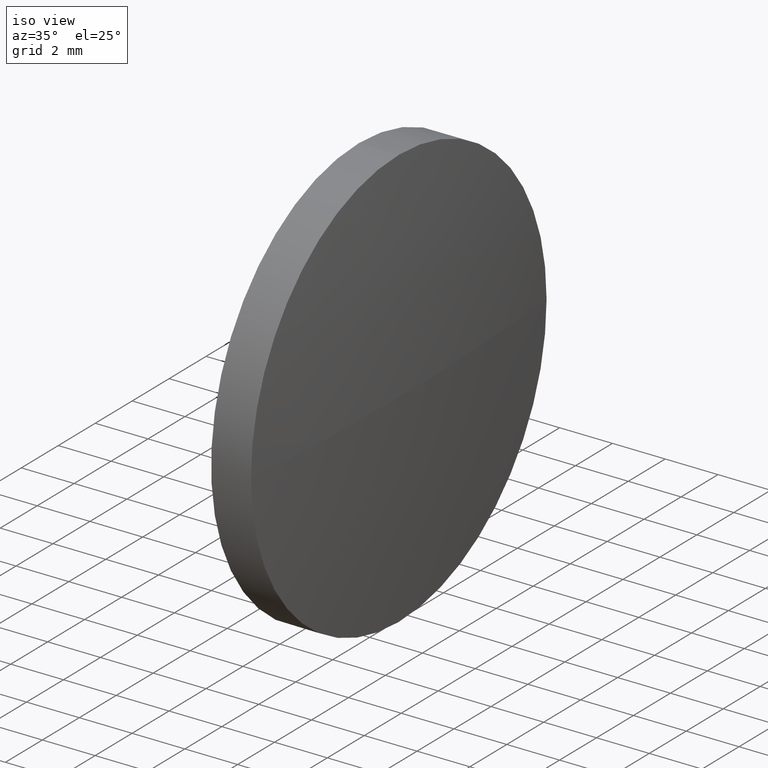
[diagram: clean part render]
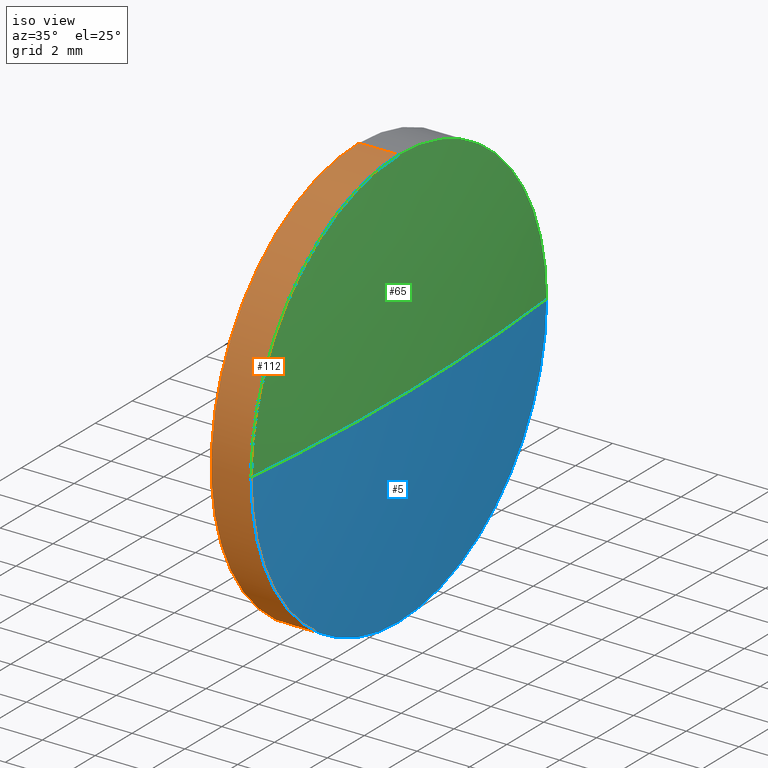
[diagram: same view with three faces highlighted in distinct colors, each labeled with its STEP entity id]
A machine part, iso view with three faces highlighted in distinct colors.
Their STEP definitions:

[orange] entity #112 — the highlighted cylindrical surface (partial cylindrical patch) has radius 8 mm, axis along (-1, -0, -0).
#1 = EDGE_CURVE ( 'NONE', #40, #123, #94, .T. ) ;
#2 = CYLINDRICAL_SURFACE ( 'NONE', #115, 7.999999999999952000 ) ;
#3 = CARTESIAN_POINT ( 'NONE',  ( 680.5108542720965900, 360.8508104614297200, 7.999999999999952000 ) ) ;
#4 = CARTESIAN_POINT ( 'NONE',  ( 679.0008542720967200, 360.8508104614297200, -7.999999999999952000 ) ) ;
#7 = EDGE_CURVE ( 'NONE', #138, #136, #69, .T. ) ;
#9 = CARTESIAN_POINT ( 'NONE',  ( 680.5108542720965900, 360.8508104614297200, -7.999999999999952000 ) ) ;
#11 = CARTESIAN_POINT ( 'NONE',  ( 679.0008542720967200, 360.8508104614297200, 7.999999999999952000 ) ) ;
#14 = CIRCLE ( 'NONE', #33, 7.999999999999952000 ) ;
#19 = AXIS2_PLACEMENT_3D ( 'NONE', #87, #141, #70 ) ;
#22 = DIRECTION ( 'NONE',  ( 0.0000000000000000000, 0.0000000000000000000, 1.000000000000000000 ) ) ;
#26 = ORIENTED_EDGE ( 'NONE', *, *, #134, .T. ) ;
#33 = AXIS2_PLACEMENT_3D ( 'NONE', #186, #107, #185 ) ;
#36 = FACE_OUTER_BOUND ( 'NONE', #85, .T. ) ;
#40 = VERTEX_POINT ( 'NONE', #9 ) ;
#45 = ORIENTED_EDGE ( 'NONE', *, *, #118, .T. ) ;
#51 = AXIS2_PLACEMENT_3D ( 'NONE', #76, #79, #156 ) ;
#53 = EDGE_CURVE ( 'NONE', #123, #136, #72, .T. ) ;
#61 = VERTEX_POINT ( 'NONE', #160 ) ;
#69 = LINE ( 'NONE', #127, #132 ) ;
#70 = DIRECTION ( 'NONE',  ( 0.0000000000000000000, 0.0000000000000000000, 1.000000000000000000 ) ) ;
#72 = CIRCLE ( 'NONE', #19, 7.999999999999952000 ) ;
#73 = CARTESIAN_POINT ( 'NONE',  ( 675.2755856517344500, 360.8508104614297200, -7.999999999999952000 ) ) ;
#76 = CARTESIAN_POINT ( 'NONE',  ( 680.5108542720965900, 360.8508104614297200, 0.0000000000000000000 ) ) ;
#77 = ORIENTED_EDGE ( 'NONE', *, *, #53, .F. ) ;
#79 = DIRECTION ( 'NONE',  ( -1.000000000000000000, -0.0000000000000000000, -0.0000000000000000000 ) ) ;
#85 = EDGE_LOOP ( 'NONE', ( #120, #26, #45, #116, #77 ) ) ;
#87 = CARTESIAN_POINT ( 'NONE',  ( 679.0008542720967200, 360.8508104614297200, 0.0000000000000000000 ) ) ;
#88 = DIRECTION ( 'NONE',  ( -1.000000000000000000, -0.0000000000000000000, -0.0000000000000000000 ) ) ;
#94 = LINE ( 'NONE', #73, #101 ) ;
#101 = VECTOR ( 'NONE', #88, 1000.000000000000000 ) ;
#107 = DIRECTION ( 'NONE',  ( -1.000000000000000000, -0.0000000000000000000, -0.0000000000000000000 ) ) ;
#112 = ADVANCED_FACE ( 'NONE', ( #36 ), #2, .T. ) ;
#115 = AXIS2_PLACEMENT_3D ( 'NONE', #150, #125, #22 ) ;
#116 = ORIENTED_EDGE ( 'NONE', *, *, #7, .T. ) ;
#118 = EDGE_CURVE ( 'NONE', #61, #138, #14, .T. ) ;
#120 = ORIENTED_EDGE ( 'NONE', *, *, #1, .F. ) ;
#123 = VERTEX_POINT ( 'NONE', #4 ) ;
#125 = DIRECTION ( 'NONE',  ( -1.000000000000000000, -0.0000000000000000000, -0.0000000000000000000 ) ) ;
#127 = CARTESIAN_POINT ( 'NONE',  ( 675.2755856517344500, 360.8508104614297200, 7.999999999999952000 ) ) ;
#132 = VECTOR ( 'NONE', #166, 1000.000000000000000 ) ;
#134 = EDGE_CURVE ( 'NONE', #40, #61, #147, .T. ) ;
#136 = VERTEX_POINT ( 'NONE', #11 ) ;
#138 = VERTEX_POINT ( 'NONE', #3 ) ;
#141 = DIRECTION ( 'NONE',  ( -1.000000000000000000, -0.0000000000000000000, -0.0000000000000000000 ) ) ;
#147 = CIRCLE ( 'NONE', #51, 7.999999999999952000 ) ;
#150 = CARTESIAN_POINT ( 'NONE',  ( 675.2755856517344500, 360.8508104614297200, 0.0000000000000000000 ) ) ;
#156 = DIRECTION ( 'NONE',  ( 0.0000000000000000000, 0.0000000000000000000, 1.000000000000000000 ) ) ;
#160 = CARTESIAN_POINT ( 'NONE',  ( 680.5108542720965900, 352.8508104614300600, 0.0000000000000000000 ) ) ;
#166 = DIRECTION ( 'NONE',  ( -1.000000000000000000, -0.0000000000000000000, -0.0000000000000000000 ) ) ;
#185 = DIRECTION ( 'NONE',  ( 0.0000000000000000000, 0.0000000000000000000, 1.000000000000000000 ) ) ;
#186 = CARTESIAN_POINT ( 'NONE',  ( 680.5108542720965900, 360.8508104614297200, 0.0000000000000000000 ) ) ;

[blue] entity #5 — the highlighted spherical surface has radius 82.2463 mm.
#5 = ADVANCED_FACE ( 'NONE', ( #172 ), #47, .T. ) ;
#9 = CARTESIAN_POINT ( 'NONE',  ( 680.5108542720965900, 360.8508104614297200, -7.999999999999952000 ) ) ;
#18 = ORIENTED_EDGE ( 'NONE', *, *, #158, .T. ) ;
#23 = CARTESIAN_POINT ( 'NONE',  ( 598.6545722208140900, 360.8508104614301700, 0.0000000000000000000 ) ) ;
#27 = DIRECTION ( 'NONE',  ( 0.0000000000000000000, -1.224646799147353200E-016, 1.000000000000000000 ) ) ;
#28 = DIRECTION ( 'NONE',  ( 0.0000000000000000000, 0.0000000000000000000, -1.000000000000000000 ) ) ;
#34 = AXIS2_PLACEMENT_3D ( 'NONE', #114, #28, #176 ) ;
#39 = AXIS2_PLACEMENT_3D ( 'NONE', #106, #64, #171 ) ;
#40 = VERTEX_POINT ( 'NONE', #9 ) ;
#47 = SPHERICAL_SURFACE ( 'NONE', #78, 82.24628205128244900 ) ;
#50 = CIRCLE ( 'NONE', #161, 82.24628205128247800 ) ;
#51 = AXIS2_PLACEMENT_3D ( 'NONE', #76, #79, #156 ) ;
#57 = EDGE_LOOP ( 'NONE', ( #163, #18, #81, #148 ) ) ;
#58 = CARTESIAN_POINT ( 'NONE',  ( 598.6545722208140900, 360.8508104614301700, 0.0000000000000000000 ) ) ;
#61 = VERTEX_POINT ( 'NONE', #160 ) ;
#64 = DIRECTION ( 'NONE',  ( -1.000000000000000000, -0.0000000000000000000, -0.0000000000000000000 ) ) ;
#76 = CARTESIAN_POINT ( 'NONE',  ( 680.5108542720965900, 360.8508104614297200, 0.0000000000000000000 ) ) ;
#78 = AXIS2_PLACEMENT_3D ( 'NONE', #23, #83, #162 ) ;
#79 = DIRECTION ( 'NONE',  ( -1.000000000000000000, -0.0000000000000000000, -0.0000000000000000000 ) ) ;
#81 = ORIENTED_EDGE ( 'NONE', *, *, #134, .F. ) ;
#83 = DIRECTION ( 'NONE',  ( 0.0000000000000000000, 0.0000000000000000000, 1.000000000000000000 ) ) ;
#98 = DIRECTION ( 'NONE',  ( 0.0000000000000000000, -1.000000000000000000, -1.224646799147353000E-016 ) ) ;
#106 = CARTESIAN_POINT ( 'NONE',  ( 680.5108542720965900, 360.8508104614297200, 0.0000000000000000000 ) ) ;
#113 = VERTEX_POINT ( 'NONE', #144 ) ;
#114 = CARTESIAN_POINT ( 'NONE',  ( 598.6545722208140900, 360.8508104614301700, 0.0000000000000000000 ) ) ;
#119 = CIRCLE ( 'NONE', #39, 7.999999999999952000 ) ;
#134 = EDGE_CURVE ( 'NONE', #40, #61, #147, .T. ) ;
#139 = EDGE_CURVE ( 'NONE', #154, #40, #119, .T. ) ;
#144 = CARTESIAN_POINT ( 'NONE',  ( 680.9008542720965800, 360.8508104614301700, 0.0000000000000000000 ) ) ;
#145 = EDGE_CURVE ( 'NONE', #113, #154, #50, .T. ) ;
#147 = CIRCLE ( 'NONE', #51, 7.999999999999952000 ) ;
#148 = ORIENTED_EDGE ( 'NONE', *, *, #139, .F. ) ;
#154 = VERTEX_POINT ( 'NONE', #181 ) ;
#156 = DIRECTION ( 'NONE',  ( 0.0000000000000000000, 0.0000000000000000000, 1.000000000000000000 ) ) ;
#158 = EDGE_CURVE ( 'NONE', #113, #61, #173, .T. ) ;
#160 = CARTESIAN_POINT ( 'NONE',  ( 680.5108542720965900, 352.8508104614300600, 0.0000000000000000000 ) ) ;
#161 = AXIS2_PLACEMENT_3D ( 'NONE', #58, #27, #98 ) ;
#162 = DIRECTION ( 'NONE',  ( 0.0000000000000000000, -1.000000000000000000, 0.0000000000000000000 ) ) ;
#163 = ORIENTED_EDGE ( 'NONE', *, *, #145, .F. ) ;
#171 = DIRECTION ( 'NONE',  ( 0.0000000000000000000, 0.0000000000000000000, 1.000000000000000000 ) ) ;
#172 = FACE_OUTER_BOUND ( 'NONE', #57, .T. ) ;
#173 = CIRCLE ( 'NONE', #34, 82.24628205128247800 ) ;
#176 = DIRECTION ( 'NONE',  ( -1.000000000000000000, 0.0000000000000000000, 0.0000000000000000000 ) ) ;
#181 = CARTESIAN_POINT ( 'NONE',  ( 680.5108542720965900, 368.8508104614298300, 9.797174393178378000E-016 ) ) ;

[green] entity #65 — the highlighted spherical surface has radius 82.2463 mm.
#3 = CARTESIAN_POINT ( 'NONE',  ( 680.5108542720965900, 360.8508104614297200, 7.999999999999952000 ) ) ;
#8 = ORIENTED_EDGE ( 'NONE', *, *, #99, .F. ) ;
#13 = ORIENTED_EDGE ( 'NONE', *, *, #158, .F. ) ;
#14 = CIRCLE ( 'NONE', #33, 7.999999999999952000 ) ;
#17 = CIRCLE ( 'NONE', #37, 7.999999999999952000 ) ;
#25 = AXIS2_PLACEMENT_3D ( 'NONE', #183, #164, #151 ) ;
#27 = DIRECTION ( 'NONE',  ( 0.0000000000000000000, -1.224646799147353200E-016, 1.000000000000000000 ) ) ;
#28 = DIRECTION ( 'NONE',  ( 0.0000000000000000000, 0.0000000000000000000, -1.000000000000000000 ) ) ;
#33 = AXIS2_PLACEMENT_3D ( 'NONE', #186, #107, #185 ) ;
#34 = AXIS2_PLACEMENT_3D ( 'NONE', #114, #28, #176 ) ;
#37 = AXIS2_PLACEMENT_3D ( 'NONE', #52, #71, #174 ) ;
#50 = CIRCLE ( 'NONE', #161, 82.24628205128247800 ) ;
#52 = CARTESIAN_POINT ( 'NONE',  ( 680.5108542720965900, 360.8508104614297200, 0.0000000000000000000 ) ) ;
#58 = CARTESIAN_POINT ( 'NONE',  ( 598.6545722208140900, 360.8508104614301700, 0.0000000000000000000 ) ) ;
#61 = VERTEX_POINT ( 'NONE', #160 ) ;
#63 = ORIENTED_EDGE ( 'NONE', *, *, #118, .F. ) ;
#65 = ADVANCED_FACE ( 'NONE', ( #184 ), #108, .T. ) ;
#71 = DIRECTION ( 'NONE',  ( -1.000000000000000000, -0.0000000000000000000, -0.0000000000000000000 ) ) ;
#98 = DIRECTION ( 'NONE',  ( 0.0000000000000000000, -1.000000000000000000, -1.224646799147353000E-016 ) ) ;
#99 = EDGE_CURVE ( 'NONE', #138, #154, #17, .T. ) ;
#107 = DIRECTION ( 'NONE',  ( -1.000000000000000000, -0.0000000000000000000, -0.0000000000000000000 ) ) ;
#108 = SPHERICAL_SURFACE ( 'NONE', #25, 82.24628205128244900 ) ;
#113 = VERTEX_POINT ( 'NONE', #144 ) ;
#114 = CARTESIAN_POINT ( 'NONE',  ( 598.6545722208140900, 360.8508104614301700, 0.0000000000000000000 ) ) ;
#118 = EDGE_CURVE ( 'NONE', #61, #138, #14, .T. ) ;
#126 = EDGE_LOOP ( 'NONE', ( #13, #140, #8, #63 ) ) ;
#138 = VERTEX_POINT ( 'NONE', #3 ) ;
#140 = ORIENTED_EDGE ( 'NONE', *, *, #145, .T. ) ;
#144 = CARTESIAN_POINT ( 'NONE',  ( 680.9008542720965800, 360.8508104614301700, 0.0000000000000000000 ) ) ;
#145 = EDGE_CURVE ( 'NONE', #113, #154, #50, .T. ) ;
#151 = DIRECTION ( 'NONE',  ( 0.0000000000000000000, -1.000000000000000000, 0.0000000000000000000 ) ) ;
#154 = VERTEX_POINT ( 'NONE', #181 ) ;
#158 = EDGE_CURVE ( 'NONE', #113, #61, #173, .T. ) ;
#160 = CARTESIAN_POINT ( 'NONE',  ( 680.5108542720965900, 352.8508104614300600, 0.0000000000000000000 ) ) ;
#161 = AXIS2_PLACEMENT_3D ( 'NONE', #58, #27, #98 ) ;
#164 = DIRECTION ( 'NONE',  ( 0.0000000000000000000, 0.0000000000000000000, 1.000000000000000000 ) ) ;
#173 = CIRCLE ( 'NONE', #34, 82.24628205128247800 ) ;
#174 = DIRECTION ( 'NONE',  ( 0.0000000000000000000, 0.0000000000000000000, 1.000000000000000000 ) ) ;
#176 = DIRECTION ( 'NONE',  ( -1.000000000000000000, 0.0000000000000000000, 0.0000000000000000000 ) ) ;
#181 = CARTESIAN_POINT ( 'NONE',  ( 680.5108542720965900, 368.8508104614298300, 9.797174393178378000E-016 ) ) ;
#183 = CARTESIAN_POINT ( 'NONE',  ( 598.6545722208140900, 360.8508104614301700, 0.0000000000000000000 ) ) ;
#184 = FACE_OUTER_BOUND ( 'NONE', #126, .T. ) ;
#185 = DIRECTION ( 'NONE',  ( 0.0000000000000000000, 0.0000000000000000000, 1.000000000000000000 ) ) ;
#186 = CARTESIAN_POINT ( 'NONE',  ( 680.5108542720965900, 360.8508104614297200, 0.0000000000000000000 ) ) ;